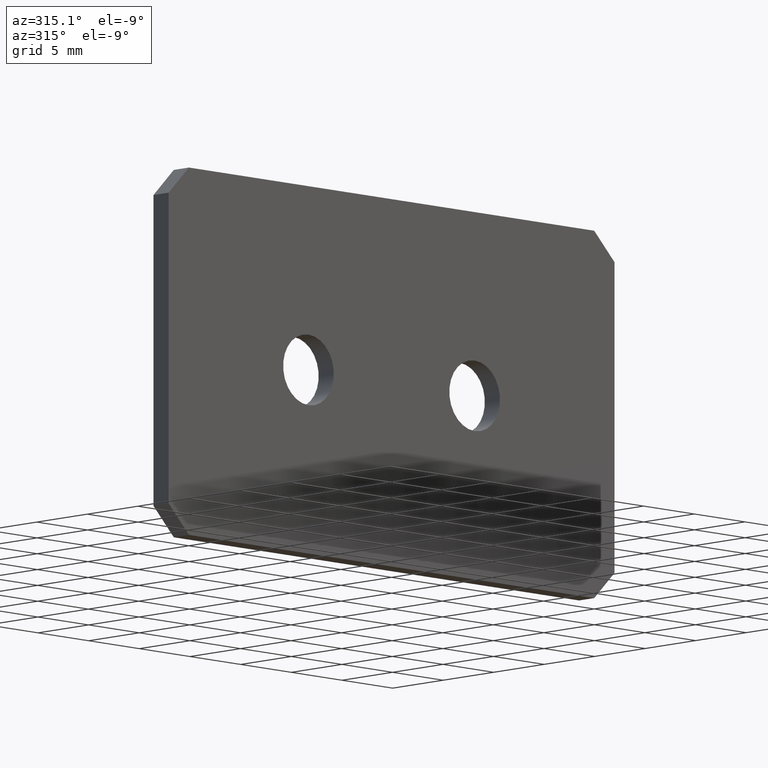
[diagram: clean part render]
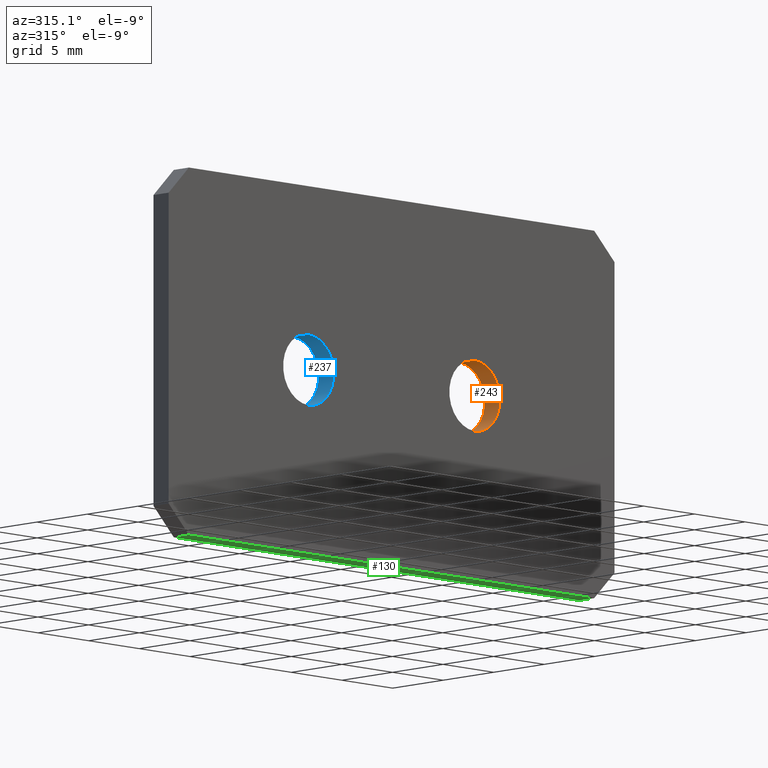
[diagram: same view with three faces highlighted in distinct colors, each labeled with its STEP entity id]
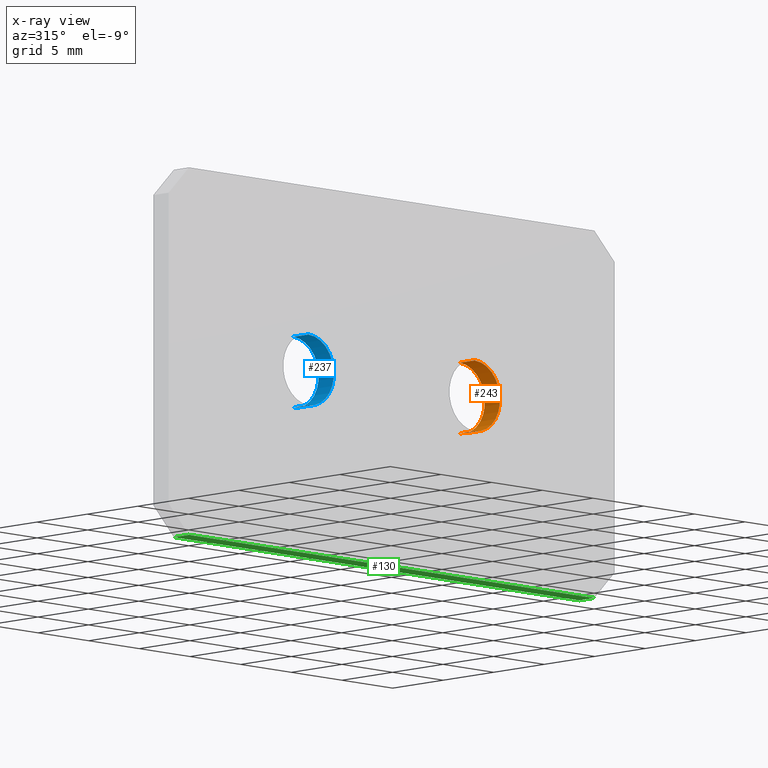
[diagram: x-ray of the same camera — body ghosted, the three highlighted faces saturated]
A machine part, auxiliary view with three faces highlighted in distinct colors.
The next image is the same camera in x-ray (body ghosted, the three faces saturated) — at least one of them is partly hidden behind the body in this view.
Their STEP definitions:

[orange] entity #243 — the highlighted cylindrical surface (edge-blend (fillet) strip) has radius 2.5 mm, axis along (-0, -1, -0).
#14 = EDGE_CURVE ( 'NONE', #223, #219, #196, .T. ) ;
#24 = EDGE_CURVE ( 'NONE', #221, #223, #153, .T. ) ;
#45 = VERTEX_POINT ( 'NONE', #268 ) ;
#46 = ORIENTED_EDGE ( 'NONE', *, *, #220, .F. ) ;
#47 = ORIENTED_EDGE ( 'NONE', *, *, #24, .T. ) ;
#48 = ORIENTED_EDGE ( 'NONE', *, *, #14, .T. ) ;
#49 = ORIENTED_EDGE ( 'NONE', *, *, #91, .F. ) ;
#91 = EDGE_CURVE ( 'NONE', #45, #219, #309, .T. ) ;
#149 = DIRECTION ( 'NONE',  ( 0.0000000000000000000, 0.0000000000000000000, -1.000000000000000000 ) ) ;
#150 = DIRECTION ( 'NONE',  ( -0.0000000000000000000, 1.000000000000000000, -0.0000000000000000000 ) ) ;
#151 = CARTESIAN_POINT ( 'NONE',  ( 8.200000000000001100, 1.500000000000000000, -2.439454888092385000E-015 ) ) ;
#152 = AXIS2_PLACEMENT_3D ( 'NONE', #151, #150, #149 ) ;
#153 = CIRCLE ( 'NONE', #152, 2.499999999999999100 ) ;
#193 = DIRECTION ( 'NONE',  ( -0.0000000000000000000, -1.000000000000000000, -0.0000000000000000000 ) ) ;
#194 = VECTOR ( 'NONE', #193, 1000.000000000000000 ) ;
#195 = CARTESIAN_POINT ( 'NONE',  ( 8.200000000000001100, 1.500000000000000000, -2.500000000000001800 ) ) ;
#196 = LINE ( 'NONE', #195, #194 ) ;
#219 = VERTEX_POINT ( 'NONE', #357 ) ;
#220 = EDGE_CURVE ( 'NONE', #221, #45, #356, .T. ) ;
#221 = VERTEX_POINT ( 'NONE', #352 ) ;
#223 = VERTEX_POINT ( 'NONE', #351 ) ;
#243 = ADVANCED_FACE ( 'NONE', ( #382 ), #376, .F. ) ;
#244 = EDGE_LOOP ( 'NONE', ( #46, #47, #48, #49 ) ) ;
#268 = CARTESIAN_POINT ( 'NONE',  ( 8.200000000000001100, 0.0000000000000000000, 2.499999999999996400 ) ) ;
#306 = DIRECTION ( 'NONE',  ( 0.0000000000000000000, 0.0000000000000000000, -1.000000000000000000 ) ) ;
#307 = DIRECTION ( 'NONE',  ( -0.0000000000000000000, 1.000000000000000000, -0.0000000000000000000 ) ) ;
#308 = AXIS2_PLACEMENT_3D ( 'NONE', #310, #307, #306 ) ;
#309 = CIRCLE ( 'NONE', #308, 2.499999999999999100 ) ;
#310 = CARTESIAN_POINT ( 'NONE',  ( 8.200000000000001100, 0.0000000000000000000, -2.439454888092385000E-015 ) ) ;
#351 = CARTESIAN_POINT ( 'NONE',  ( 8.200000000000001100, 1.500000000000000000, -2.500000000000001800 ) ) ;
#352 = CARTESIAN_POINT ( 'NONE',  ( 8.200000000000001100, 1.500000000000000000, 2.499999999999996400 ) ) ;
#353 = DIRECTION ( 'NONE',  ( -0.0000000000000000000, -1.000000000000000000, -0.0000000000000000000 ) ) ;
#354 = VECTOR ( 'NONE', #353, 1000.000000000000000 ) ;
#355 = CARTESIAN_POINT ( 'NONE',  ( 8.200000000000001100, 1.500000000000000000, 2.499999999999996400 ) ) ;
#356 = LINE ( 'NONE', #355, #354 ) ;
#357 = CARTESIAN_POINT ( 'NONE',  ( 8.200000000000001100, 0.0000000000000000000, -2.500000000000001800 ) ) ;
#372 = DIRECTION ( 'NONE',  ( 0.0000000000000000000, 0.0000000000000000000, -1.000000000000000000 ) ) ;
#373 = DIRECTION ( 'NONE',  ( -0.0000000000000000000, -1.000000000000000000, -0.0000000000000000000 ) ) ;
#374 = AXIS2_PLACEMENT_3D ( 'NONE', #375, #373, #372 ) ;
#375 = CARTESIAN_POINT ( 'NONE',  ( 8.200000000000001100, 1.500000000000000000, -2.439454888092385000E-015 ) ) ;
#376 = CYLINDRICAL_SURFACE ( 'NONE', #374, 2.499999999999999100 ) ;
#382 = FACE_OUTER_BOUND ( 'NONE', #244, .T. ) ;

[blue] entity #237 — the highlighted cylindrical surface (edge-blend (fillet) strip) has radius 2.5 mm, axis along (-0, -1, -0).
#4 = VERTEX_POINT ( 'NONE', #211 ) ;
#11 = VERTEX_POINT ( 'NONE', #204 ) ;
#13 = VERTEX_POINT ( 'NONE', #201 ) ;
#28 = EDGE_CURVE ( 'NONE', #11, #42, #140, .T. ) ;
#39 = EDGE_CURVE ( 'NONE', #13, #11, #160, .T. ) ;
#42 = VERTEX_POINT ( 'NONE', #271 ) ;
#44 = EDGE_CURVE ( 'NONE', #4, #42, #277, .T. ) ;
#139 = AXIS2_PLACEMENT_3D ( 'NONE', #178, #177, #176 ) ;
#140 = CIRCLE ( 'NONE', #139, 2.500000000000000400 ) ;
#157 = DIRECTION ( 'NONE',  ( -0.0000000000000000000, -1.000000000000000000, -0.0000000000000000000 ) ) ;
#158 = VECTOR ( 'NONE', #157, 1000.000000000000000 ) ;
#159 = CARTESIAN_POINT ( 'NONE',  ( -8.199999999999997500, 1.500000000000000000, 2.500000000000001300 ) ) ;
#160 = LINE ( 'NONE', #159, #158 ) ;
#176 = DIRECTION ( 'NONE',  ( 0.0000000000000000000, 0.0000000000000000000, 1.000000000000000000 ) ) ;
#177 = DIRECTION ( 'NONE',  ( 0.0000000000000000000, 1.000000000000000000, 0.0000000000000000000 ) ) ;
#178 = CARTESIAN_POINT ( 'NONE',  ( -8.199999999999997500, 0.0000000000000000000, 1.029992063861229200E-015 ) ) ;
#181 = EDGE_CURVE ( 'NONE', #13, #4, #365, .T. ) ;
#201 = CARTESIAN_POINT ( 'NONE',  ( -8.199999999999997500, 1.500000000000000000, 2.500000000000001300 ) ) ;
#204 = CARTESIAN_POINT ( 'NONE',  ( -8.199999999999997500, 0.0000000000000000000, 2.500000000000001300 ) ) ;
#211 = CARTESIAN_POINT ( 'NONE',  ( -8.199999999999997500, 1.500000000000000000, -2.499999999999999600 ) ) ;
#237 = ADVANCED_FACE ( 'NONE', ( #383 ), #381, .F. ) ;
#238 = EDGE_LOOP ( 'NONE', ( #239, #240, #241, #242 ) ) ;
#239 = ORIENTED_EDGE ( 'NONE', *, *, #39, .F. ) ;
#240 = ORIENTED_EDGE ( 'NONE', *, *, #181, .T. ) ;
#241 = ORIENTED_EDGE ( 'NONE', *, *, #44, .T. ) ;
#242 = ORIENTED_EDGE ( 'NONE', *, *, #28, .F. ) ;
#267 = CARTESIAN_POINT ( 'NONE',  ( -8.199999999999997500, 1.500000000000000000, -2.499999999999999600 ) ) ;
#271 = CARTESIAN_POINT ( 'NONE',  ( -8.199999999999997500, 0.0000000000000000000, -2.499999999999999600 ) ) ;
#272 = VECTOR ( 'NONE', #273, 1000.000000000000000 ) ;
#273 = DIRECTION ( 'NONE',  ( -0.0000000000000000000, -1.000000000000000000, -0.0000000000000000000 ) ) ;
#277 = LINE ( 'NONE', #267, #272 ) ;
#358 = DIRECTION ( 'NONE',  ( 0.0000000000000000000, 0.0000000000000000000, 1.000000000000000000 ) ) ;
#362 = DIRECTION ( 'NONE',  ( 0.0000000000000000000, 1.000000000000000000, 0.0000000000000000000 ) ) ;
#363 = CARTESIAN_POINT ( 'NONE',  ( -8.199999999999997500, 1.500000000000000000, 1.029992063861229200E-015 ) ) ;
#364 = AXIS2_PLACEMENT_3D ( 'NONE', #363, #362, #358 ) ;
#365 = CIRCLE ( 'NONE', #364, 2.500000000000000400 ) ;
#377 = DIRECTION ( 'NONE',  ( 0.0000000000000000000, 0.0000000000000000000, -1.000000000000000000 ) ) ;
#378 = DIRECTION ( 'NONE',  ( -0.0000000000000000000, -1.000000000000000000, -0.0000000000000000000 ) ) ;
#379 = CARTESIAN_POINT ( 'NONE',  ( -8.199999999999997500, 1.500000000000000000, 1.029992063861229200E-015 ) ) ;
#380 = AXIS2_PLACEMENT_3D ( 'NONE', #379, #378, #377 ) ;
#381 = CYLINDRICAL_SURFACE ( 'NONE', #380, 2.500000000000000400 ) ;
#383 = FACE_OUTER_BOUND ( 'NONE', #238, .T. ) ;

[green] entity #130 — the highlighted planar face has unit normal (0, -0, 1).
#5 = VERTEX_POINT ( 'NONE', #210 ) ;
#31 = EDGE_CURVE ( 'NONE', #38, #226, #141, .T. ) ;
#34 = EDGE_CURVE ( 'NONE', #35, #5, #171, .T. ) ;
#35 = VERTEX_POINT ( 'NONE', #167 ) ;
#38 = VERTEX_POINT ( 'NONE', #162 ) ;
#70 = EDGE_CURVE ( 'NONE', #38, #35, #263, .T. ) ;
#99 = EDGE_CURVE ( 'NONE', #226, #5, #319, .T. ) ;
#130 = ADVANCED_FACE ( 'NONE', ( #460 ), #435, .F. ) ;
#131 = EDGE_LOOP ( 'NONE', ( #132, #133, #134, #135 ) ) ;
#132 = ORIENTED_EDGE ( 'NONE', *, *, #34, .T. ) ;
#133 = ORIENTED_EDGE ( 'NONE', *, *, #99, .F. ) ;
#134 = ORIENTED_EDGE ( 'NONE', *, *, #31, .F. ) ;
#135 = ORIENTED_EDGE ( 'NONE', *, *, #70, .T. ) ;
#141 = LINE ( 'NONE', #175, #174 ) ;
#162 = CARTESIAN_POINT ( 'NONE',  ( 19.99999999999999600, 1.500000000000000000, -13.00000000000000700 ) ) ;
#167 = CARTESIAN_POINT ( 'NONE',  ( 19.99999999999999600, 0.0000000000000000000, -13.00000000000000700 ) ) ;
#168 = DIRECTION ( 'NONE',  ( -1.000000000000000000, -0.0000000000000000000, 1.301042606982605600E-016 ) ) ;
#169 = VECTOR ( 'NONE', #168, 1000.000000000000000 ) ;
#170 = CARTESIAN_POINT ( 'NONE',  ( -19.99999999999999600, 0.0000000000000000000, -13.00000000000000200 ) ) ;
#171 = LINE ( 'NONE', #170, #169 ) ;
#173 = DIRECTION ( 'NONE',  ( -1.000000000000000000, -0.0000000000000000000, 1.301042606982605600E-016 ) ) ;
#174 = VECTOR ( 'NONE', #173, 1000.000000000000000 ) ;
#175 = CARTESIAN_POINT ( 'NONE',  ( -19.99999999999999600, 1.500000000000000000, -13.00000000000000200 ) ) ;
#210 = CARTESIAN_POINT ( 'NONE',  ( -19.99999999999999600, 0.0000000000000000000, -13.00000000000000200 ) ) ;
#226 = VERTEX_POINT ( 'NONE', #346 ) ;
#260 = DIRECTION ( 'NONE',  ( -0.0000000000000000000, -1.000000000000000000, -0.0000000000000000000 ) ) ;
#261 = VECTOR ( 'NONE', #260, 1000.000000000000000 ) ;
#262 = CARTESIAN_POINT ( 'NONE',  ( 19.99999999999999600, 1.500000000000000000, -13.00000000000000700 ) ) ;
#263 = LINE ( 'NONE', #262, #261 ) ;
#316 = DIRECTION ( 'NONE',  ( -0.0000000000000000000, -1.000000000000000000, -0.0000000000000000000 ) ) ;
#317 = VECTOR ( 'NONE', #316, 1000.000000000000000 ) ;
#318 = CARTESIAN_POINT ( 'NONE',  ( -19.99999999999999600, 1.500000000000000000, -13.00000000000000200 ) ) ;
#319 = LINE ( 'NONE', #318, #317 ) ;
#346 = CARTESIAN_POINT ( 'NONE',  ( -19.99999999999999600, 1.500000000000000000, -13.00000000000000200 ) ) ;
#434 = CARTESIAN_POINT ( 'NONE',  ( -19.99999999999999600, 1.500000000000000000, -13.00000000000000200 ) ) ;
#435 = PLANE ( 'NONE',  #459 ) ;
#437 = DIRECTION ( 'NONE',  ( 1.301042606982605600E-016, -0.0000000000000000000, 1.000000000000000000 ) ) ;
#456 = DIRECTION ( 'NONE',  ( 1.000000000000000000, 0.0000000000000000000, -1.301042606982605600E-016 ) ) ;
#459 = AXIS2_PLACEMENT_3D ( 'NONE', #434, #437, #456 ) ;
#460 = FACE_OUTER_BOUND ( 'NONE', #131, .T. ) ;